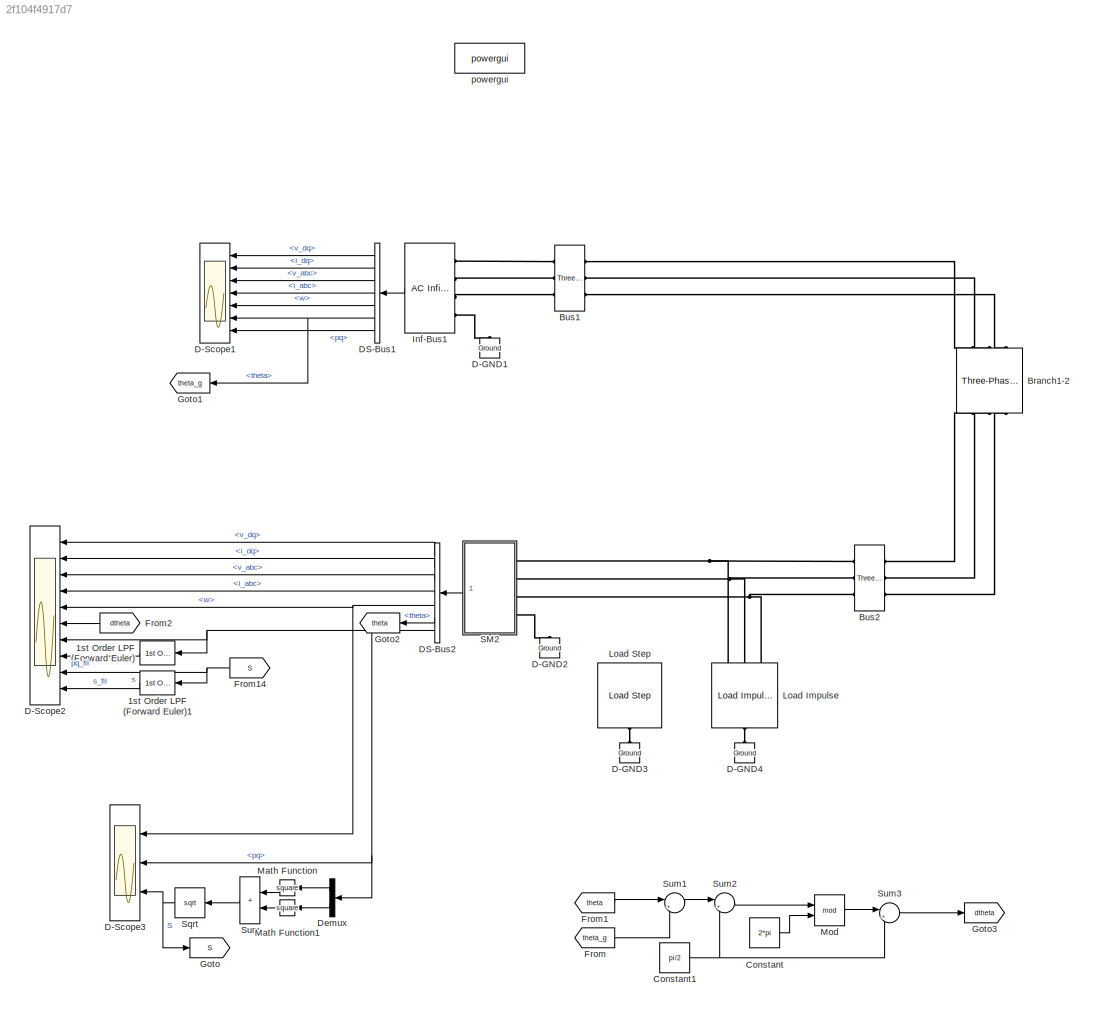
MODEL slx_2f104f4917d7
KIND model
CONFIG AbsTol = auto
CONFIG EnableMultiTasking = off
CONFIG FixedStep = Ts
CONFIG MaxStep = auto
CONFIG MinStep = auto
CONFIG RelTol = 1e-3
CONFIG SampleTimeConstraint = Unconstrained
CONFIG SolverName = FixedStepAuto
CONFIG StartTime = 0
CONFIG StopTime = 4
BLOCK [Reference] 1st Order LPF (Forward Euler)  REF=SimplexPS/1st Order LPF
(Forward Euler)
  NameLocation = top
  Ports = [1, 1]
  SourceBlock = SimplexPS/1st Order LPF\n(Forward Euler)
  SourceProductName = Simplex Power Systems
BLOCK [Reference] 1st Order LPF (Forward Euler)1  REF=SimplexPS/1st Order LPF
(Forward Euler)
  NameLocation = top
  Ports = [1, 1]
  SourceBlock = SimplexPS/1st Order LPF\n(Forward Euler)
  SourceProductName = Simplex Power Systems
BLOCK [Reference] Branch1-2  REF=powerlib/Elements/Three-Phase
Series RLC Branch
  AttributesFormatString = \n
  NameLocation = right
  Ports = [0, 0, 0, 0, 0, 3, 3]
  SourceBlock = powerlib/Elements/Three-Phase\nSeries RLC Branch
  SourceProductBaseCode = PS
  SourceType = Three-Phase Series RLC Branch
BLOCK [Reference] Bus1  REF=SimplexPS/Three-Phase Bus
  Ports = [0, 0, 0, 0, 0, 3, 3]
  SourceBlock = SimplexPS/Three-Phase Bus
  SourceProductName = Simplex Power Systems
BLOCK [Reference] Bus2  REF=SimplexPS/Three-Phase Bus
  Ports = [0, 0, 0, 0, 0, 3, 3]
  SourceBlock = SimplexPS/Three-Phase Bus
  SourceProductName = Simplex Power Systems
BLOCK [Constant] Constant
  Value = 2*pi
BLOCK [Constant] Constant1
  Value = pi/2
BLOCK [Reference] D-GND1  REF=powerlib/Elements/Ground
  NameLocation = right
  Ports = [0, 0, 0, 0, 0, 1]
  SourceBlock = powerlib/Elements/Ground
  SourceProductBaseCode = PS
  SourceType = Ground
BLOCK [Reference] D-GND2  REF=powerlib/Elements/Ground
  NameLocation = right
  Ports = [0, 0, 0, 0, 0, 1]
  SourceBlock = powerlib/Elements/Ground
  SourceProductBaseCode = PS
  SourceType = Ground
BLOCK [Reference] D-GND3  REF=powerlib/Elements/Ground
  Commented = on
  NameLocation = right
  Ports = [0, 0, 0, 0, 0, 1]
  SourceBlock = powerlib/Elements/Ground
  SourceProductBaseCode = PS
  SourceType = Ground
BLOCK [Reference] D-GND4  REF=powerlib/Elements/Ground
  NameLocation = right
  Ports = [0, 0, 0, 0, 0, 1]
  SourceBlock = powerlib/Elements/Ground
  SourceProductBaseCode = PS
  SourceType = Ground
BLOCK [Scope] D-Scope1
  Floating = off
  NumInputPorts = 7
  Ports = [7]
  ScopeSpecificationString = Simulink.scopes.TimeScopeBlockCfg('CurrentConfiguration', extmgr.ConfigurationSet(extmgr.Configuration('Core','General UI',true),extmgr.Configuration('Core','Source UI',true),extmgr.Configuration('Sources','WiredSimulink',true),extmgr.Configuration('Visuals','Time Domain',true,'SerializedDisplays',{struct('MinYLimReal','-0.125','MaxYLimReal','1.125','YLabelReal','','MinYLimMag','0.00000','MaxYLimM...<+5530ch>
BLOCK [Scope] D-Scope2
  Floating = off
  NumInputPorts = 10
  Ports = [10]
  ScopeSpecificationString = Simulink.scopes.TimeScopeBlockCfg('CurrentConfiguration', extmgr.ConfigurationSet(extmgr.Configuration('Core','General UI',true),extmgr.Configuration('Core','Source UI',true),extmgr.Configuration('Sources','WiredSimulink',true,'DataLogging',true,'DataLoggingVariableName','Gamma_SimData_SG','DataLoggingSaveFormat','StructureWithTime','DataLoggingDecimateData',true),extmgr.Configuration('Visuals','T...<+8136ch>
BLOCK [Scope] D-Scope3
  Floating = off
  NumInputPorts = 3
  Ports = [3]
  ScopeSpecificationString = Simulink.scopes.TimeScopeBlockCfg('CurrentConfiguration', extmgr.ConfigurationSet(extmgr.Configuration('Core','General UI',true),extmgr.Configuration('Core','Source UI',true),extmgr.Configuration('Sources','WiredSimulink',true,'DataLoggingVariableName','Case1_Sim_SG','DataLoggingSaveFormat','StructureWithTime'),extmgr.Configuration('Visuals','Time Domain',true,'SerializedDisplays',{struct('MinYLim...<+2789ch>
BLOCK [BusSelector] DS-Bus1
  OutputSignals = v_dq,i_dq,v_abc,i_abc,w,theta,pq
  Ports = [1, 7]
BLOCK [BusSelector] DS-Bus2
  OutputSignals = v_dq,i_dq,v_abc,i_abc,w,theta,pq
  Ports = [1, 7]
BLOCK [Demux] Demux
  NameLocation = top
  Outputs = 2
  Ports = [1, 2]
BLOCK [From] From
  GotoTag = theta_g
  NameLocation = top
BLOCK [From] From1
  GotoTag = theta
  NameLocation = top
BLOCK [From] From14
  GotoTag = S
  NameLocation = top
BLOCK [From] From2
  GotoTag = dtheta
  NameLocation = top
BLOCK [Goto] Goto
  GotoTag = S
BLOCK [Goto] Goto1
  GotoTag = theta_g
  NameLocation = top
BLOCK [Goto] Goto2
  GotoTag = theta
  NameLocation = top
BLOCK [Goto] Goto3
  GotoTag = dtheta
BLOCK [Reference] Inf-Bus1  REF=SimplexPS/AC Infinite Bus
(Voltage Type)
  Ports = [0, 1, 0, 0, 0, 4]
  SourceBlock = SimplexPS/AC Infinite Bus\n(Voltage Type)
  SourceProductName = Simplex Power Systems
BLOCK [Reference] Load Impulse  REF=SimplexPS/Load Impulse
  NameLocation = right
  Ports = [0, 0, 0, 0, 0, 3, 1]
  SourceBlock = SimplexPS/Load Impulse
  SourceProductName = Simplex Power Systems
BLOCK [Reference] Load Step  REF=SimplexPS/Load Step
  Commented = on
  NameLocation = right
  Ports = [0, 0, 0, 0, 0, 3, 1]
  SourceBlock = SimplexPS/Load Step
  SourceProductName = Simplex Power Systems
BLOCK [Math] Math Function
  NameLocation = top
  Operator = square
  Ports = [1, 1]
BLOCK [Math] Math Function1
  NameLocation = top
  Operator = square
  Ports = [1, 1]
BLOCK [Math] Mod
  Operator = mod
  Ports = [2, 1]
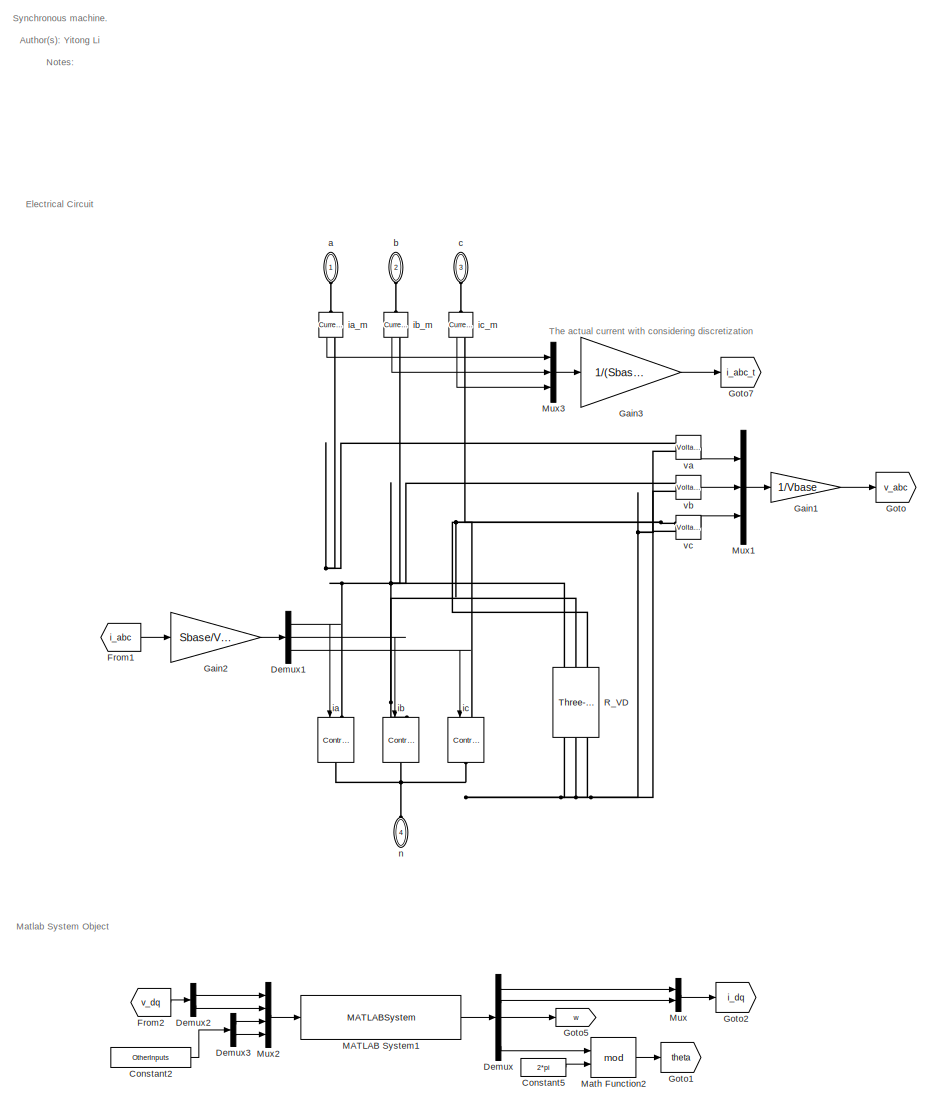
[diagram: SM2 - part 1/2, left side, full height]
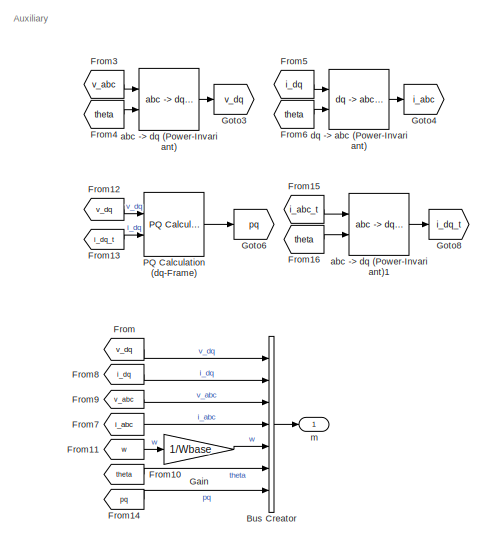
[diagram: SM2 - part 2/2, middle right region]
BLOCK [SubSystem] SM2
  AncestorBlock = SimplexPS/Synchronous Machine\n(dq-Frame System Object)
  Ports = [0, 1, 0, 0, 0, 4]
  RequestExecContextInheritance = off
BLOCK [BusCreator] SM2/Bus Creator
  DisplayOption = bar
  InheritFromInputs = on
  Inputs = 7
  Ports = [7, 1]
BLOCK [Constant] SM2/Constant2
  Value = OtherInputs
BLOCK [Constant] SM2/Constant5
  NameLocation = top
  Value = 2*pi
BLOCK [Demux] SM2/Demux
  Outputs = 5
  Ports = [1, 5]
BLOCK [Demux] SM2/Demux1
  Outputs = 3
  Ports = [1, 3]
BLOCK [Demux] SM2/Demux2
  Outputs = 2
  Ports = [1, 2]
BLOCK [Demux] SM2/Demux3
  Outputs = 2
  Ports = [1, 2]
BLOCK [From] SM2/From
  GotoTag = v_dq
BLOCK [From] SM2/From1
  GotoTag = i_abc
BLOCK [From] SM2/From10
  GotoTag = theta
BLOCK [From] SM2/From11
  GotoTag = w
BLOCK [From] SM2/From12
  GotoTag = v_dq
BLOCK [From] SM2/From13
  GotoTag = i_dq_t
BLOCK [From] SM2/From14
  GotoTag = pq
BLOCK [From] SM2/From15
  GotoTag = i_abc_t
BLOCK [From] SM2/From16
  GotoTag = theta
BLOCK [From] SM2/From2
  GotoTag = v_dq
BLOCK [From] SM2/From3
  GotoTag = v_abc
BLOCK [From] SM2/From4
  GotoTag = theta
BLOCK [From] SM2/From5
  GotoTag = i_dq
BLOCK [From] SM2/From6
  GotoTag = theta
BLOCK [From] SM2/From7
  GotoTag = i_abc
BLOCK [From] SM2/From8
  GotoTag = i_dq
BLOCK [From] SM2/From9
  GotoTag = v_abc
BLOCK [Gain] SM2/Gain
  Gain = 1/Wbase
BLOCK [Gain] SM2/Gain1
  Gain = 1/Vbase
BLOCK [Gain] SM2/Gain2
  Gain = Sbase/Vbase
BLOCK [Gain] SM2/Gain3
  Gain = 1/(Sbase/Vbase)
BLOCK [Goto] SM2/Goto
  GotoTag = v_abc
BLOCK [Goto] SM2/Goto1
  GotoTag = theta
BLOCK [Goto] SM2/Goto2
  GotoTag = i_dq
BLOCK [Goto] SM2/Goto3
  GotoTag = v_dq
BLOCK [Goto] SM2/Goto4
  GotoTag = i_abc
BLOCK [Goto] SM2/Goto5
  GotoTag = w
BLOCK [Goto] SM2/Goto6
  GotoTag = pq
BLOCK [Goto] SM2/Goto7
  GotoTag = i_abc_t
BLOCK [Goto] SM2/Goto8
  GotoTag = i_dq_t
BLOCK [MATLABSystem] SM2/MATLAB System1
  DeviceType = DeviceType
  DirectFeedthrough = DirectFeedthrough
  DiscreMethod = DiscreMethod
  ElecPortIOs = [ 1, 2 ]
  EquiInitial = true
  LinearizationTimes = LinearizationTimes
  MaskDisplay = disp('SynchronousMachine_Disturb');\nport_label('input',1,'u');\nport_label('output',1,'y');
  MaskType = SimplexPS.Class.SynchronousMachine_Disturb
  Para = DevicePara
  Ports = [1, 1]
  PowerFlow = PowerFlow
  SimulateUsing = Code generation
  System = SimplexPS.Class.SynchronousMachine_Disturb
  Ts = Ts
  VirtualResistor = DiscreDampingFlag
  x0 = x0
BLOCK [Math] SM2/Math Function2
  Operator = mod
  Ports = [2, 1]
  SignedPower = on
BLOCK [Mux] SM2/Mux
  DisplayOption = bar
  Inputs = 2
  Ports = [2, 1]
BLOCK [Mux] SM2/Mux1
  DisplayOption = bar
  Inputs = 3
  Ports = [3, 1]
BLOCK [Mux] SM2/Mux2
  DisplayOption = bar
  Ports = [4, 1]
BLOCK [Mux] SM2/Mux3
  DisplayOption = bar
  Inputs = 3
  Ports = [3, 1]
BLOCK [Reference] SM2/PQ Calculation (dq-Frame)  REF=SimplexPS/PQ Calculation
(dq-Frame)
  Ports = [2, 1]
  SourceBlock = SimplexPS/PQ Calculation\n(dq-Frame)
  SourceProductName = Simplex Power Systems
BLOCK [Reference] SM2/R_VD  REF=powerlib/Elements/Three-Phase
Series RLC Branch
  AttributesFormatString = \n
  NameLocation = right
  Ports = [0, 0, 0, 0, 0, 3, 3]
  SourceBlock = powerlib/Elements/Three-Phase\nSeries RLC Branch
  SourceProductBaseCode = PS
  SourceType = Three-Phase Series RLC Branch
BLOCK [PMIOPort] SM2/a
  NameLocation = left
  Side = Left
BLOCK [Reference] SM2/abc -> dq (Power-Invariant)  REF=SimplexPS/abc -> dq
(Power-Invariant)
  Ports = [2, 1]
  SourceBlock = SimplexPS/abc -> dq\n(Power-Invariant)
  SourceProductName = Simplex Power Systems
BLOCK [Reference] SM2/abc -> dq (Power-Invariant)1  REF=SimplexPS/abc -> dq
(Power-Invariant)
  Ports = [2, 1]
  SourceBlock = SimplexPS/abc -> dq\n(Power-Invariant)
  SourceProductName = Simplex Power Systems
BLOCK [PMIOPort] SM2/b
  NameLocation = left
  Port = 2
  Side = Left
BLOCK [PMIOPort] SM2/c
  NameLocation = left
  Port = 3
  Side = Left
BLOCK [Reference] SM2/dq -> abc (Power-Invariant)  REF=SimplexPS/dq -> abc
(Power-Invariant)
  Ports = [2, 1]
  SourceBlock = SimplexPS/dq -> abc\n(Power-Invariant)
  SourceProductName = Simplex Power Systems
BLOCK [Reference] SM2/ia  REF=powerlib/Electrical
Sources/Controlled Current Source
  NameLocation = left
  Ports = [1, 0, 0, 0, 0, 1, 1]
  SourceBlock = powerlib/Electrical\nSources/Controlled Current Source
  SourceProductBaseCode = PS
  SourceType = Controlled Current Source
BLOCK [Reference] SM2/ia_m  REF=powerlib/Measurements/Current Measurement
  NameLocation = left
  Ports = [0, 1, 0, 0, 0, 1, 1]
  SourceBlock = powerlib/Measurements/Current Measurement
  SourceProductBaseCode = PS
  SourceType = Current Measurement
  UserDataPersistent = on
BLOCK [Reference] SM2/ib  REF=powerlib/Electrical
Sources/Controlled Current Source
  NameLocation = left
  Ports = [1, 0, 0, 0, 0, 1, 1]
  SourceBlock = powerlib/Electrical\nSources/Controlled Current Source
  SourceProductBaseCode = PS
  SourceType = Controlled Current Source
BLOCK [Reference] SM2/ib_m  REF=powerlib/Measurements/Current Measurement
  NameLocation = left
  Ports = [0, 1, 0, 0, 0, 1, 1]
  SourceBlock = powerlib/Measurements/Current Measurement
  SourceProductBaseCode = PS
  SourceType = Current Measurement
  UserDataPersistent = on
BLOCK [Reference] SM2/ic  REF=powerlib/Electrical
Sources/Controlled Current Source
  NameLocation = left
  Ports = [1, 0, 0, 0, 0, 1, 1]
  SourceBlock = powerlib/Electrical\nSources/Controlled Current Source
  SourceProductBaseCode = PS
  SourceType = Controlled Current Source
BLOCK [Reference] SM2/ic_m  REF=powerlib/Measurements/Current Measurement
  NameLocation = left
  Ports = [0, 1, 0, 0, 0, 1, 1]
  SourceBlock = powerlib/Measurements/Current Measurement
  SourceProductBaseCode = PS
  SourceType = Current Measurement
  UserDataPersistent = on
BLOCK [Outport] SM2/m
BLOCK [PMIOPort] SM2/n
  NameLocation = right
  Port = 4
  Side = Left
BLOCK [Reference] SM2/va  REF=powerlib/Measurements/Voltage Measurement
  Ports = [0, 1, 0, 0, 0, 2]
  SourceBlock = powerlib/Measurements/Voltage Measurement
  SourceProductBaseCode = PS
  SourceType = Voltage Measurement
  UserDataPersistent = on
BLOCK [Reference] SM2/vb  REF=powerlib/Measurements/Voltage Measurement
  Ports = [0, 1, 0, 0, 0, 2]
  SourceBlock = powerlib/Measurements/Voltage Measurement
  SourceProductBaseCode = PS
  SourceType = Voltage Measurement
  UserDataPersistent = on
BLOCK [Reference] SM2/vc  REF=powerlib/Measurements/Voltage Measurement
  Ports = [0, 1, 0, 0, 0, 2]
  SourceBlock = powerlib/Measurements/Voltage Measurement
  SourceProductBaseCode = PS
  SourceType = Voltage Measurement
  UserDataPersistent = on
BLOCK [Sqrt] Sqrt
  NameLocation = top
BLOCK [Sum] Sum
  IconShape = rectangular
  NameLocation = top
  Ports = [2, 1]
BLOCK [Sum] Sum1
  Inputs = |+-
  Ports = [2, 1]
BLOCK [Sum] Sum2
  Inputs = |++
  Ports = [2, 1]
BLOCK [Sum] Sum3
  Inputs = |+-
  Ports = [2, 1]
BLOCK [Reference] powergui  REF=powerlib/powergui
  Ports = []
  Priority = 1
  SourceBlock = powerlib/powergui
  SourceProductBaseCode = PS
  SourceType = PSB option menu block
ANNOTATION SM2: Auxiliary
ANNOTATION SM2: Electrical Circuit
ANNOTATION SM2: Matlab System Object
ANNOTATION SM2: Synchronous machine. Author(s): Yitong Li Notes: This model is based on matlab system object. The model is in load convention. The frame transformation between dq and abc is done by simulink blocks, i.e., outside the system object.
ANNOTATION SM2: The actual current with considering discretization
LINE 1st Order LPF (Forward Euler)1:1 -> D-Scope2:10
LINE 1st Order LPF (Forward Euler):1 -> D-Scope2:8
NET Constant1:1 -> Sum2:2, Sum3:2
LINE Constant:1 -> Mod:2
LINE DS-Bus1:1 -> D-Scope1:1
LINE DS-Bus1:2 -> D-Scope1:2
LINE DS-Bus1:3 -> D-Scope1:3
LINE DS-Bus1:4 -> D-Scope1:4
LINE DS-Bus1:5 -> D-Scope1:5
NET DS-Bus1:6 -> D-Scope1:6, Goto1:1
LINE DS-Bus1:7 -> D-Scope1:7
LINE DS-Bus2:1 -> D-Scope2:1
LINE DS-Bus2:2 -> D-Scope2:2
LINE DS-Bus2:3 -> D-Scope2:3
LINE DS-Bus2:4 -> D-Scope2:4
NET DS-Bus2:5 -> D-Scope2:5, D-Scope3:1
LINE DS-Bus2:6 -> Goto2:1
NET DS-Bus2:7 -> 1st Order LPF (Forward Euler):1, D-Scope2:7, D-Scope3:2, Demux:1
LINE Demux:1 -> Math Function:1
LINE Demux:2 -> Math Function1:1
NET From14:1 -> 1st Order LPF (Forward Euler)1:1, D-Scope2:9
LINE From1:1 -> Sum1:1
LINE From2:1 -> D-Scope2:6
LINE From:1 -> Sum1:2
LINE Inf-Bus1:1 -> DS-Bus1:1
LINE Math Function1:1 -> Sum:2
LINE Math Function:1 -> Sum:1
LINE Mod:1 -> Sum3:1
LINE SM2:1 -> DS-Bus2:1
NET Sqrt:1 -> D-Scope3:3, Goto:1
LINE Sum1:1 -> Sum2:1
LINE Sum2:1 -> Mod:1
LINE Sum3:1 -> Goto3:1
LINE Sum:1 -> Sqrt:1
PLINE Branch1-2:LConn1 -- Bus1:RConn1
PLINE Branch1-2:LConn2 -- Bus1:RConn2
PLINE Branch1-2:LConn3 -- Bus1:RConn3
PLINE Branch1-2:RConn1 -- Bus2:RConn1
PLINE Branch1-2:RConn2 -- Bus2:RConn2
PLINE Branch1-2:RConn3 -- Bus2:RConn3
PLINE Bus1:LConn1 -- Inf-Bus1:LConn1
PLINE Bus1:LConn2 -- Inf-Bus1:LConn2
PLINE Bus1:LConn3 -- Inf-Bus1:LConn3
PNET net1: Bus2:LConn1 -- Load Impulse:LConn1 -- SM2:LConn1
PNET net2: Bus2:LConn2 -- Load Impulse:LConn2 -- SM2:LConn2
PNET net3: Bus2:LConn3 -- Load Impulse:LConn3 -- SM2:LConn3
PLINE D-GND1:LConn1 -- Inf-Bus1:LConn4
PLINE D-GND2:LConn1 -- SM2:LConn4
PLINE D-GND3:LConn1 -- Load Step:RConn1
PLINE D-GND4:LConn1 -- Load Impulse:RConn1
note: NET lines group one-source signal fan-out (src -> all destinations, sorted); 1:1 wires keep LINE; PNET lines group multi-terminal physical nets as a canonical sorted terminal list (undirected conserving connections); 2-terminal nets keep the pairwise PLINE form
